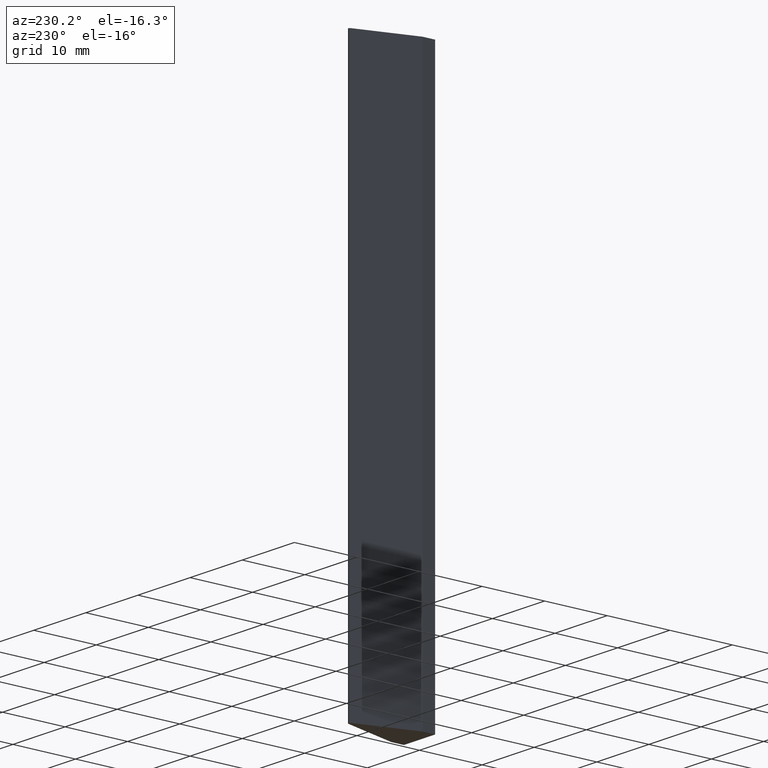
[diagram: clean part render]
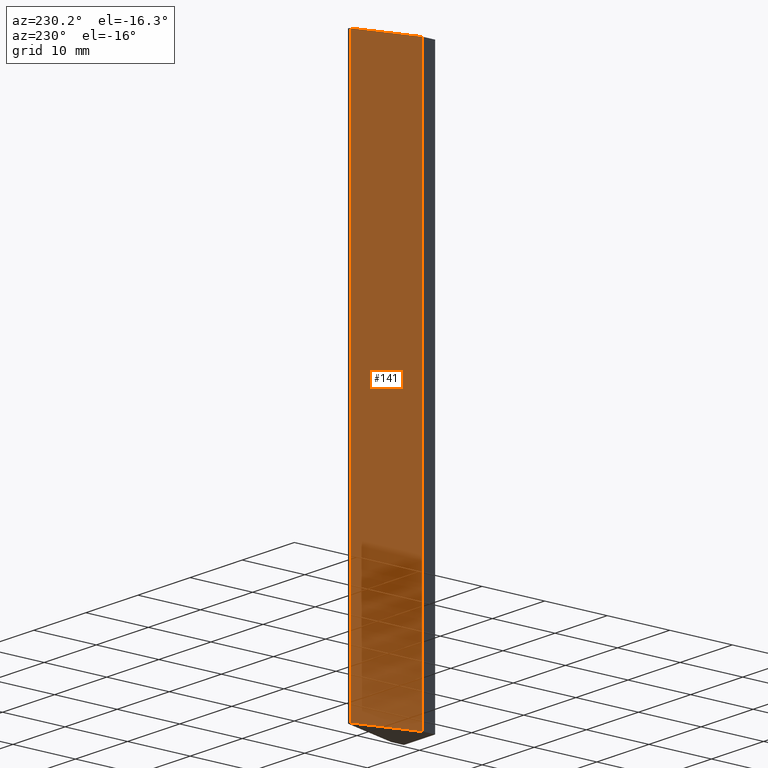
[diagram: same view with one face highlighted and labeled with its STEP entity id]
A machine part, auxiliary view. The second image highlights one B-rep face of the part: STEP entity #141.
In plain terms, the highlighted planar face has unit normal (-0.9576, 0.2882, 0).
Its self-contained STEP definition (entity closure, byte-faithful):
#18=FACE_OUTER_BOUND('',#26,.T.);
#26=EDGE_LOOP('',(#106,#107,#108,#109));
#36=LINE('',#226,#52);
#41=LINE('',#237,#57);
#42=LINE('',#240,#58);
#43=LINE('',#241,#59);
#52=VECTOR('',#186,10.);
#57=VECTOR('',#195,10.);
#58=VECTOR('',#198,10.);
#59=VECTOR('',#199,10.);
#68=VERTEX_POINT('',#223);
#69=VERTEX_POINT('',#225);
#73=VERTEX_POINT('',#235);
#74=VERTEX_POINT('',#239);
#80=EDGE_CURVE('',#68,#69,#36,.T.);
#86=EDGE_CURVE('',#68,#73,#41,.T.);
#87=EDGE_CURVE('',#74,#73,#42,.T.);
#88=EDGE_CURVE('',#69,#74,#43,.T.);
#106=ORIENTED_EDGE('',*,*,#86,.T.);
#107=ORIENTED_EDGE('',*,*,#87,.F.);
#108=ORIENTED_EDGE('',*,*,#88,.F.);
#109=ORIENTED_EDGE('',*,*,#80,.F.);
#134=PLANE('',#173);
#141=ADVANCED_FACE('',(#18),#134,.T.);
#173=AXIS2_PLACEMENT_3D('',#238,#196,#197);
#186=DIRECTION('',(0.288209068636552,0.957567508197543,0.));
#195=DIRECTION('',(0.,0.,1.));
#196=DIRECTION('center_axis',(-0.957567508197543,0.288209068636552,0.));
#197=DIRECTION('ref_axis',(-0.288209068636552,-0.957567508197543,0.));
#198=DIRECTION('',(-0.288209068636552,-0.957567508197543,0.));
#199=DIRECTION('',(0.,0.,1.));
#223=CARTESIAN_POINT('',(-3.,2.00999999999999,-44.45));
#225=CARTESIAN_POINT('',(-0.239391877049385,11.1820522671591,-44.45));
#226=CARTESIAN_POINT('',(-0.239391877049385,11.1820522671591,-44.45));
#235=CARTESIAN_POINT('',(-3.,2.00999999999999,44.45));
#237=CARTESIAN_POINT('',(-3.,2.00999999999999,0.));
#238=CARTESIAN_POINT('Origin',(-0.239391877049385,11.1820522671591,0.));
#239=CARTESIAN_POINT('',(-0.239391877049385,11.1820522671591,44.45));
#240=CARTESIAN_POINT('',(-0.239391877049385,11.1820522671591,44.45));
#241=CARTESIAN_POINT('',(-0.239391877049385,11.1820522671591,0.));